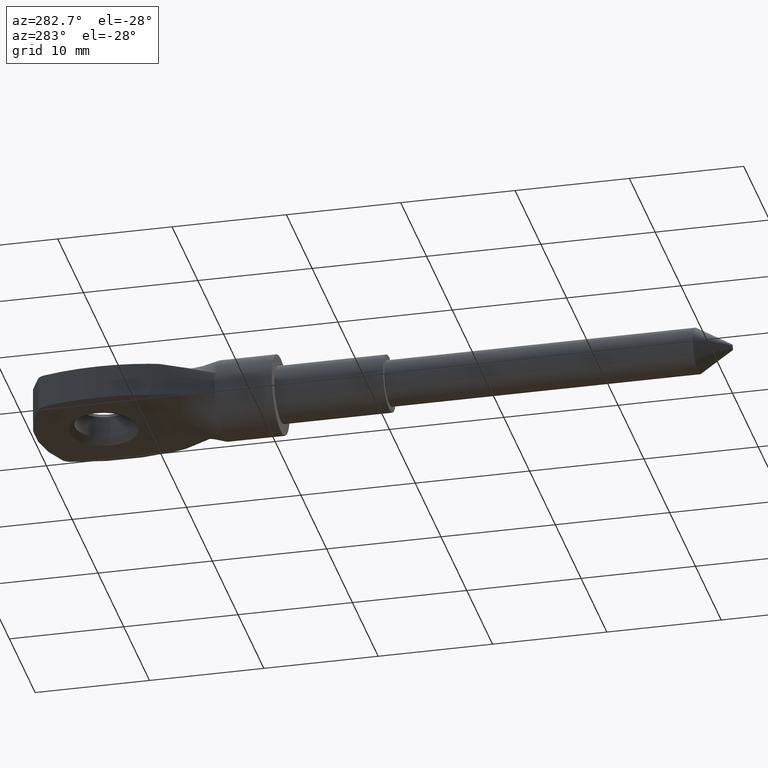
[diagram: clean part render]
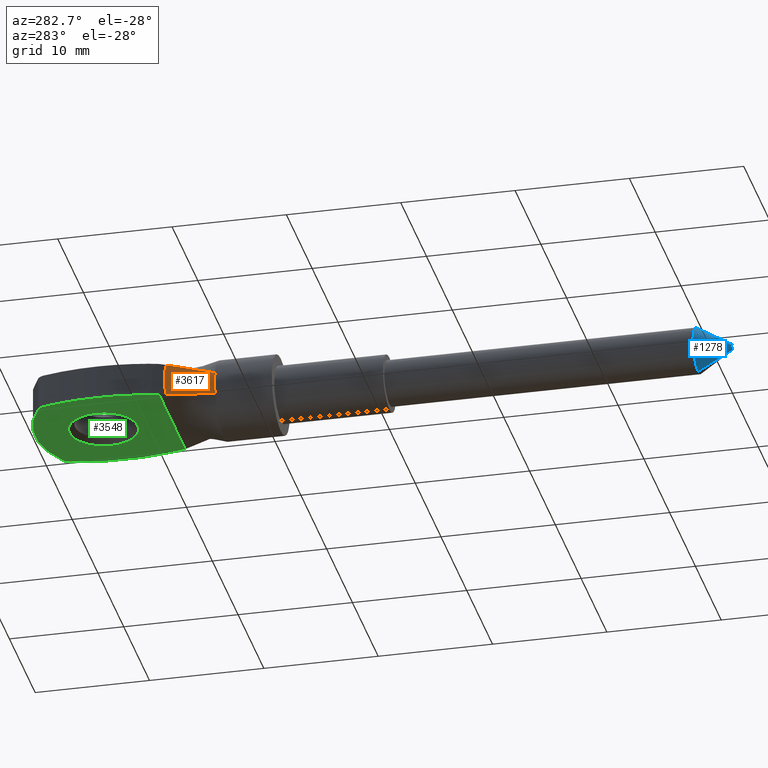
[diagram: same view with three faces highlighted in distinct colors, each labeled with its STEP entity id]
A machine part, auxiliary view with three faces highlighted in distinct colors.
Their STEP definitions:

[orange] entity #3617 — the highlighted face is a freeform B-spline surface patch.
#672 = CARTESIAN_POINT ( 'NONE',  ( -5.056021605490287600, 48.99999999999999300, 0.4999999999999990600 ) ) ;
#764 = LINE ( 'NONE', #6045, #4235 ) ;
#1009 = CARTESIAN_POINT ( 'NONE',  ( -4.918094482883141400, 48.60380004718535200, -0.4851963612217159400 ) ) ;
#1010 = B_SPLINE_SURFACE_WITH_KNOTS ( 'NONE', 3, 1, ( 
 ( #11789, #14049 ),
 ( #4984, #13961 ),
 ( #672, #6221 ),
 ( #12961, #2819 ),
 ( #10547, #4081 ),
 ( #10600, #7355 ) ),
 .UNSPECIFIED., .F., .F., .F.,
 ( 4, 2, 4 ),
 ( 2, 2 ),
 ( 0.0000000000000000000, 0.5000000000000000000, 1.000000000000000000 ),
 ( 0.0000000000000000000, 1.000000000000000000 ),
 .UNSPECIFIED. ) ;
#1729 = VERTEX_POINT ( 'NONE', #11827 ) ;
#2232 = CARTESIAN_POINT ( 'NONE',  ( -4.924405192743728700, 48.61936564056047400, 0.2432541116524944100 ) ) ;
#2598 = EDGE_CURVE ( 'NONE', #2620, #10090, #7171, .T. ) ;
#2620 = VERTEX_POINT ( 'NONE', #4704 ) ;
#2819 = CARTESIAN_POINT ( 'NONE',  ( -3.500000000000000900, 44.50000000000000700, -0.3388236185237016900 ) ) ;
#2893 = LINE ( 'NONE', #4837, #13983 ) ;
#2979 = EDGE_LOOP ( 'NONE', ( #4736, #3005, #7690, #12358 ) ) ;
#3005 = ORIENTED_EDGE ( 'NONE', *, *, #4285, .T. ) ;
#3085 = FACE_OUTER_BOUND ( 'NONE', #2979, .T. ) ;
#3252 = CARTESIAN_POINT ( 'NONE',  ( -4.891120015516262000, 48.54061751881855700, -0.9652113418151568900 ) ) ;
#3617 = ADVANCED_FACE ( 'NONE', ( #3085 ), #1010, .T. ) ;
#3756 = DIRECTION ( 'NONE',  ( 0.3515770152094533900, -0.9303301485610877600, 0.1043044440794158000 ) ) ;
#4081 = CARTESIAN_POINT ( 'NONE',  ( -3.449825324165552300, 44.50000000000000000, -0.6773582578305119600 ) ) ;
#4235 = VECTOR ( 'NONE', #3756, 1000.000000000000100 ) ;
#4285 = EDGE_CURVE ( 'NONE', #5069, #1729, #5057, .T. ) ;
#4459 = CARTESIAN_POINT ( 'NONE',  ( -4.838615001929873900, 48.42470665305572900, 1.435500689912696500 ) ) ;
#4704 = CARTESIAN_POINT ( 'NONE',  ( -3.355650334725514200, 44.50000000000000000, -0.9955416597942884400 ) ) ;
#4736 = ORIENTED_EDGE ( 'NONE', *, *, #5279, .F. ) ;
#4837 = CARTESIAN_POINT ( 'NONE',  ( -4.205733903382859600, 46.75000000000000000, 1.247740090395150300 ) ) ;
#4884 = DIRECTION ( 'NONE',  ( 0.0000000000000000000, 0.0000000000000000000, 1.000000000000000000 ) ) ;
#4984 = CARTESIAN_POINT ( 'NONE',  ( -5.056021605490287600, 48.99999999999999300, 0.9999999999999993300 ) ) ;
#5057 = B_SPLINE_CURVE_WITH_KNOTS ( 'NONE', 3,
 ( #5473, #6573, #11296, #7735, #2232, #11076, #1009, #3252, #8603, #10699 ),
 .UNSPECIFIED., .F., .F.,
 ( 4, 2, 2, 2, 4 ),
 ( -5.999999999490791000E-008, 0.0007290418259506889600, 0.001458143651901372800, 0.002187245477852056100, 0.002916347303802740000 ),
 .UNSPECIFIED. ) ;
#5069 = VERTEX_POINT ( 'NONE', #4459 ) ;
#5279 = EDGE_CURVE ( 'NONE', #5069, #10090, #2893, .T. ) ;
#5320 = CARTESIAN_POINT ( 'NONE',  ( -3.355623743714192500, 44.50000000000000000, 0.9955336945150837800 ) ) ;
#5473 = CARTESIAN_POINT ( 'NONE',  ( -4.838615001929873900, 48.42470665305572900, 1.435500689912696500 ) ) ;
#6045 = CARTESIAN_POINT ( 'NONE',  ( -4.205733903382858700, 46.75000000000000000, -1.247740090395151000 ) ) ;
#6221 = CARTESIAN_POINT ( 'NONE',  ( -3.500000000000000400, 44.50000000000000700, 0.3388236185237005800 ) ) ;
#6573 = CARTESIAN_POINT ( 'NONE',  ( -4.870403864582149500, 48.49283527146975100, 1.204387175550704300 ) ) ;
#7171 = CIRCLE ( 'NONE', #12813, 3.500000000000000000 ) ;
#7355 = CARTESIAN_POINT ( 'NONE',  ( -3.355446201275429400, 44.50000000000000000, -0.9954801807903019800 ) ) ;
#7690 = ORIENTED_EDGE ( 'NONE', *, *, #9359, .T. ) ;
#7735 = CARTESIAN_POINT ( 'NONE',  ( -4.918102579805668600, 48.60381905905141100, 0.4850462486628301400 ) ) ;
#8187 = CARTESIAN_POINT ( 'NONE',  ( 0.0000000000000000000, 44.50000000000000000, 0.0000000000000000000 ) ) ;
#8603 = CARTESIAN_POINT ( 'NONE',  ( -4.870403864589804700, 48.49283527150279100, -1.204387175561490600 ) ) ;
#9359 = EDGE_CURVE ( 'NONE', #1729, #2620, #764, .T. ) ;
#10090 = VERTEX_POINT ( 'NONE', #5320 ) ;
#10547 = CARTESIAN_POINT ( 'NONE',  ( -5.056021605490287600, 48.99999999999999300, -1.000000000000000700 ) ) ;
#10600 = CARTESIAN_POINT ( 'NONE',  ( -5.056021605490288500, 49.00000000000000000, -1.500000000000000000 ) ) ;
#10699 = CARTESIAN_POINT ( 'NONE',  ( -4.838615001929882800, 48.42470665305575700, -1.435500689912699900 ) ) ;
#11076 = CARTESIAN_POINT ( 'NONE',  ( -4.924401263639966300, 48.61935611570246600, -0.2434724581431163300 ) ) ;
#11296 = CARTESIAN_POINT ( 'NONE',  ( -4.891113732350794100, 48.54060275533446100, 0.9653291778706991600 ) ) ;
#11393 = DIRECTION ( 'NONE',  ( 0.0000000000000000000, 1.000000000000000000, 0.0000000000000000000 ) ) ;
#11789 = CARTESIAN_POINT ( 'NONE',  ( -5.056021605490288500, 49.00000000000000000, 1.500000000000000000 ) ) ;
#11827 = CARTESIAN_POINT ( 'NONE',  ( -4.838615001929882800, 48.42470665305575700, -1.435500689912699900 ) ) ;
#12358 = ORIENTED_EDGE ( 'NONE', *, *, #2598, .T. ) ;
#12813 = AXIS2_PLACEMENT_3D ( 'NONE', #8187, #11393, #4884 ) ;
#12961 = CARTESIAN_POINT ( 'NONE',  ( -5.056021605490287600, 48.99999999999999300, -0.5000000000000010000 ) ) ;
#13770 = DIRECTION ( 'NONE',  ( 0.3515770152094534500, -0.9303301485610877600, -0.1043044440794160700 ) ) ;
#13961 = CARTESIAN_POINT ( 'NONE',  ( -3.449825324165552300, 44.50000000000000700, 0.6773582578305107300 ) ) ;
#13983 = VECTOR ( 'NONE', #13770, 1000.000000000000000 ) ;
#14049 = CARTESIAN_POINT ( 'NONE',  ( -3.355446201275429800, 44.50000000000000000, 0.9954801807903006500 ) ) ;

[blue] entity #1278 — the highlighted conical surface has half-angle 30.256 deg.
#43 = CARTESIAN_POINT ( 'NONE',  ( 0.0000000000000000000, 3.000000000000000900, 0.0000000000000000000 ) ) ;
#677 = DIRECTION ( 'NONE',  ( -0.0000000000000000000, -1.000000000000000000, -0.0000000000000000000 ) ) ;
#1278 = ADVANCED_FACE ( 'NONE', ( #3903 ), #14290, .T. ) ;
#1749 = ORIENTED_EDGE ( 'NONE', *, *, #5065, .T. ) ;
#1860 = CARTESIAN_POINT ( 'NONE',  ( 0.0000000000000000000, 3.000000000000000900, -2.000000000000004400 ) ) ;
#2361 = DIRECTION ( 'NONE',  ( 6.170640385911674700E-017, 0.8637789008984329000, -0.5038710255240870200 ) ) ;
#2484 = AXIS2_PLACEMENT_3D ( 'NONE', #43, #12244, #3267 ) ;
#3068 = EDGE_CURVE ( 'NONE', #3838, #11428, #13489, .T. ) ;
#3196 = CARTESIAN_POINT ( 'NONE',  ( 0.0000000000000000000, -5.264398931363305000E-017, 0.2500000000000000000 ) ) ;
#3267 = DIRECTION ( 'NONE',  ( 0.0000000000000000000, 0.0000000000000000000, -1.000000000000000000 ) ) ;
#3286 = EDGE_LOOP ( 'NONE', ( #6366, #11329, #8715, #1749 ) ) ;
#3336 = CARTESIAN_POINT ( 'NONE',  ( 0.0000000000000000000, -5.264398931363305000E-017, 0.0000000000000000000 ) ) ;
#3376 = CIRCLE ( 'NONE', #8092, 0.2500000000000000000 ) ;
#3838 = VERTEX_POINT ( 'NONE', #3196 ) ;
#3903 = FACE_OUTER_BOUND ( 'NONE', #3286, .T. ) ;
#4045 = LINE ( 'NONE', #8872, #6096 ) ;
#5065 = EDGE_CURVE ( 'NONE', #11428, #12563, #9120, .T. ) ;
#5460 = DIRECTION ( 'NONE',  ( 0.0000000000000000000, 0.8637789008984329000, 0.5038710255240870200 ) ) ;
#6096 = VECTOR ( 'NONE', #2361, 1000.000000000000100 ) ;
#6366 = ORIENTED_EDGE ( 'NONE', *, *, #11264, .F. ) ;
#6561 = CARTESIAN_POINT ( 'NONE',  ( 0.0000000000000000000, -5.264398931363305000E-017, 0.2500000000000000000 ) ) ;
#6620 = AXIS2_PLACEMENT_3D ( 'NONE', #3336, #7775, #7728 ) ;
#7728 = DIRECTION ( 'NONE',  ( 0.0000000000000000000, 0.0000000000000000000, 1.000000000000000000 ) ) ;
#7775 = DIRECTION ( 'NONE',  ( 0.0000000000000000000, 1.000000000000000000, 0.0000000000000000000 ) ) ;
#8092 = AXIS2_PLACEMENT_3D ( 'NONE', #10553, #677, #8243 ) ;
#8243 = DIRECTION ( 'NONE',  ( 0.0000000000000000000, 0.0000000000000000000, -1.000000000000000000 ) ) ;
#8715 = ORIENTED_EDGE ( 'NONE', *, *, #3068, .T. ) ;
#8872 = CARTESIAN_POINT ( 'NONE',  ( 3.061616997868383000E-017, -5.264398931363305000E-017, -0.2500000000000000000 ) ) ;
#9120 = CIRCLE ( 'NONE', #2484, 2.000000000000004400 ) ;
#9172 = CARTESIAN_POINT ( 'NONE',  ( 1.377727649040774900E-016, -5.264398931363305000E-017, -0.2500000000000000000 ) ) ;
#9976 = EDGE_CURVE ( 'NONE', #3838, #11945, #3376, .T. ) ;
#10420 = CARTESIAN_POINT ( 'NONE',  ( 2.449293598294711800E-016, 3.000000000000000900, 2.000000000000004400 ) ) ;
#10553 = CARTESIAN_POINT ( 'NONE',  ( 0.0000000000000000000, -5.264398931363305000E-017, 0.0000000000000000000 ) ) ;
#11264 = EDGE_CURVE ( 'NONE', #11945, #12563, #4045, .T. ) ;
#11329 = ORIENTED_EDGE ( 'NONE', *, *, #9976, .F. ) ;
#11395 = VECTOR ( 'NONE', #5460, 1000.000000000000100 ) ;
#11428 = VERTEX_POINT ( 'NONE', #10420 ) ;
#11945 = VERTEX_POINT ( 'NONE', #9172 ) ;
#12244 = DIRECTION ( 'NONE',  ( -0.0000000000000000000, -1.000000000000000000, -0.0000000000000000000 ) ) ;
#12563 = VERTEX_POINT ( 'NONE', #1860 ) ;
#13489 = LINE ( 'NONE', #6561, #11395 ) ;
#14290 = CONICAL_SURFACE ( 'NONE', #6620, 0.2500000000000000000, 0.5280744484263606400 ) ;

[green] entity #3548 — the highlighted planar face has unit normal (0, 0, 1).
#145 = CARTESIAN_POINT ( 'NONE',  ( 5.264414197257599100, 49.84241978187635900, -1.500000000000000000 ) ) ;
#464 = VERTEX_POINT ( 'NONE', #1018 ) ;
#643 = FACE_OUTER_BOUND ( 'NONE', #11048, .T. ) ;
#687 = ORIENTED_EDGE ( 'NONE', *, *, #13177, .T. ) ;
#769 = CARTESIAN_POINT ( 'NONE',  ( 5.037407379332575100, 49.00000000000000000, -1.500000000000000000 ) ) ;
#980 = ORIENTED_EDGE ( 'NONE', *, *, #1079, .F. ) ;
#1018 = CARTESIAN_POINT ( 'NONE',  ( 5.156421867766698400, 59.05919208108967700, -1.500000000000000000 ) ) ;
#1079 = EDGE_CURVE ( 'NONE', #11578, #13180, #10484, .T. ) ;
#1168 = CARTESIAN_POINT ( 'NONE',  ( -14.25000000000000000, 54.22278946237950200, -1.500000000000000000 ) ) ;
#1238 = DIRECTION ( 'NONE',  ( 0.0000000000000000000, 0.0000000000000000000, 1.000000000000000000 ) ) ;
#1408 = CIRCLE ( 'NONE', #8376, 1.000000000000000000 ) ;
#1765 = CARTESIAN_POINT ( 'NONE',  ( -5.124994130331836900, 49.27759510181818600, -1.500000000000000000 ) ) ;
#1822 = EDGE_CURVE ( 'NONE', #7990, #6540, #4921, .T. ) ;
#1863 = ORIENTED_EDGE ( 'NONE', *, *, #12800, .T. ) ;
#1896 = DIRECTION ( 'NONE',  ( -1.000000000000000000, 0.0000000000000000000, 0.0000000000000000000 ) ) ;
#1973 = ORIENTED_EDGE ( 'NONE', *, *, #6155, .T. ) ;
#2132 = DIRECTION ( 'NONE',  ( 1.000000000000000000, 0.0000000000000000000, -0.0000000000000000000 ) ) ;
#2336 = DIRECTION ( 'NONE',  ( -0.0000000000000000000, -0.0000000000000000000, -1.000000000000000000 ) ) ;
#2904 = FACE_BOUND ( 'NONE', #9941, .T. ) ;
#3073 = PLANE ( 'NONE',  #14263 ) ;
#3164 = ORIENTED_EDGE ( 'NONE', *, *, #13765, .T. ) ;
#3313 = ORIENTED_EDGE ( 'NONE', *, *, #1822, .F. ) ;
#3511 = DIRECTION ( 'NONE',  ( 0.0000000000000000000, 0.0000000000000000000, 1.000000000000000000 ) ) ;
#3548 = ADVANCED_FACE ( 'NONE', ( #2904, #643 ), #3073, .F. ) ;
#3732 = CIRCLE ( 'NONE', #7781, 2.999999999999988900 ) ;
#3805 = VERTEX_POINT ( 'NONE', #13325 ) ;
#3928 = CARTESIAN_POINT ( 'NONE',  ( 0.0000000000000000000, 55.00000000000000000, -1.500000000000000000 ) ) ;
#3973 = DIRECTION ( 'NONE',  ( 1.000000000000000000, 0.0000000000000000000, 0.0000000000000000000 ) ) ;
#4271 = CARTESIAN_POINT ( 'NONE',  ( 14.25000000000000000, 54.22278946237950200, -1.500000000000000000 ) ) ;
#4401 = CARTESIAN_POINT ( 'NONE',  ( 14.25000000000000000, 49.00000000000000000, -1.500000000000000000 ) ) ;
#4424 = CARTESIAN_POINT ( 'NONE',  ( 2.999999999999988900, 55.00000000000000000, -1.500000000000000000 ) ) ;
#4566 = AXIS2_PLACEMENT_3D ( 'NONE', #1168, #10110, #5714 ) ;
#4655 = VERTEX_POINT ( 'NONE', #769 ) ;
#4717 = VERTEX_POINT ( 'NONE', #7442 ) ;
#4780 = VERTEX_POINT ( 'NONE', #9622 ) ;
#4890 = CARTESIAN_POINT ( 'NONE',  ( -5.264414197257602600, 49.84241978187638000, -1.500000000000000000 ) ) ;
#4921 = CIRCLE ( 'NONE', #5615, 8.999999999999998200 ) ;
#4941 = CARTESIAN_POINT ( 'NONE',  ( -4.709363371175657100, 59.66954344392344500, -1.500000000000000000 ) ) ;
#5264 = DIRECTION ( 'NONE',  ( 0.0000000000000000000, 0.0000000000000000000, 1.000000000000000000 ) ) ;
#5299 = AXIS2_PLACEMENT_3D ( 'NONE', #6766, #2336, #6817 ) ;
#5525 = CARTESIAN_POINT ( 'NONE',  ( 5.264414197257599100, 49.84241978187635900, -1.500000000000000000 ) ) ;
#5615 = AXIS2_PLACEMENT_3D ( 'NONE', #10913, #5264, #1896 ) ;
#5714 = DIRECTION ( 'NONE',  ( -1.000000000000000000, 0.0000000000000000000, 0.0000000000000000000 ) ) ;
#5734 = ORIENTED_EDGE ( 'NONE', *, *, #12259, .F. ) ;
#5938 = VERTEX_POINT ( 'NONE', #145 ) ;
#6072 = DIRECTION ( 'NONE',  ( 0.0000000000000000000, 0.0000000000000000000, 1.000000000000000000 ) ) ;
#6155 = EDGE_CURVE ( 'NONE', #5938, #4655, #9585, .T. ) ;
#6160 = VERTEX_POINT ( 'NONE', #4424 ) ;
#6166 = ORIENTED_EDGE ( 'NONE', *, *, #12635, .F. ) ;
#6402 = AXIS2_PLACEMENT_3D ( 'NONE', #9950, #1238, #12327 ) ;
#6508 = CARTESIAN_POINT ( 'NONE',  ( -4.186100774378362900, 58.81737195015416800, -1.500000000000000000 ) ) ;
#6540 = VERTEX_POINT ( 'NONE', #4941 ) ;
#6579 = CARTESIAN_POINT ( 'NONE',  ( 5.200661218778599900, 49.55840219452854700, -1.499999999999986500 ) ) ;
#6663 = DIRECTION ( 'NONE',  ( 1.000000000000000000, 0.0000000000000000000, 0.0000000000000000000 ) ) ;
#6766 = CARTESIAN_POINT ( 'NONE',  ( 4.186100774378362000, 58.81737195015416800, -1.500000000000000000 ) ) ;
#6817 = DIRECTION ( 'NONE',  ( 1.000000000000000000, -6.938893903907228400E-015, 0.0000000000000000000 ) ) ;
#7111 = ORIENTED_EDGE ( 'NONE', *, *, #13403, .T. ) ;
#7257 = EDGE_CURVE ( 'NONE', #6160, #3805, #3732, .T. ) ;
#7442 = CARTESIAN_POINT ( 'NONE',  ( -5.264414197257602600, 49.84241978187638000, -1.500000000000000000 ) ) ;
#7781 = AXIS2_PLACEMENT_3D ( 'NONE', #3928, #6072, #3973 ) ;
#7866 = DIRECTION ( 'NONE',  ( 0.0000000000000000000, 0.0000000000000000000, 1.000000000000000000 ) ) ;
#7990 = VERTEX_POINT ( 'NONE', #8646 ) ;
#7996 = VECTOR ( 'NONE', #2132, 1000.000000000000000 ) ;
#8048 = ORIENTED_EDGE ( 'NONE', *, *, #13832, .F. ) ;
#8109 = DIRECTION ( 'NONE',  ( 1.000000000000000000, 0.0000000000000000000, 0.0000000000000000000 ) ) ;
#8162 = CIRCLE ( 'NONE', #6402, 20.00000000000000400 ) ;
#8376 = AXIS2_PLACEMENT_3D ( 'NONE', #6508, #14289, #12024 ) ;
#8495 = CIRCLE ( 'NONE', #5299, 1.000000000000000000 ) ;
#8646 = CARTESIAN_POINT ( 'NONE',  ( 4.709363371175656200, 59.66954344392344500, -1.500000000000000000 ) ) ;
#9072 = DIRECTION ( 'NONE',  ( 1.000000000000000000, 0.0000000000000000000, -0.0000000000000000000 ) ) ;
#9356 = CARTESIAN_POINT ( 'NONE',  ( -5.037407379332568000, 49.00000000000000000, -1.500000000000000000 ) ) ;
#9585 = B_SPLINE_CURVE_WITH_KNOTS ( 'NONE', 3,
 ( #5525, #6579, #11097, #14361 ),
 .UNSPECIFIED., .F., .F.,
 ( 4, 4 ),
 ( 0.0000000000000000000, 0.0008724695893159019200 ),
 .UNSPECIFIED. ) ;
#9622 = CARTESIAN_POINT ( 'NONE',  ( -5.037407379332568000, 49.00000000000000000, -1.500000000000000000 ) ) ;
#9941 = EDGE_LOOP ( 'NONE', ( #1863, #11669 ) ) ;
#9950 = CARTESIAN_POINT ( 'NONE',  ( 14.25000000000000000, 54.22278946237950200, -1.500000000000000000 ) ) ;
#10110 = DIRECTION ( 'NONE',  ( 0.0000000000000000000, 0.0000000000000000000, 1.000000000000000000 ) ) ;
#10138 = AXIS2_PLACEMENT_3D ( 'NONE', #10166, #3511, #8109 ) ;
#10166 = CARTESIAN_POINT ( 'NONE',  ( 14.25000000000000000, 54.22278946237950200, -1.500000000000000000 ) ) ;
#10192 = B_SPLINE_CURVE_WITH_KNOTS ( 'NONE', 3,
 ( #9356, #1765, #12791, #4890 ),
 .UNSPECIFIED., .F., .F.,
 ( 4, 4 ),
 ( 0.0000000000000000000, 0.0008724695893159239300 ),
 .UNSPECIFIED. ) ;
#10484 = CIRCLE ( 'NONE', #10138, 20.00000000000000400 ) ;
#10913 = CARTESIAN_POINT ( 'NONE',  ( 0.0000000000000000000, 52.00000000000000700, -1.500000000000000000 ) ) ;
#11048 = EDGE_LOOP ( 'NONE', ( #3313, #7111, #5734, #1973, #6166, #687, #8048, #980, #3164 ) ) ;
#11097 = CARTESIAN_POINT ( 'NONE',  ( 5.124994130331839600, 49.27759510181817900, -1.500000000000000000 ) ) ;
#11482 = LINE ( 'NONE', #4401, #7996 ) ;
#11578 = VERTEX_POINT ( 'NONE', #12725 ) ;
#11669 = ORIENTED_EDGE ( 'NONE', *, *, #7257, .T. ) ;
#12024 = DIRECTION ( 'NONE',  ( 1.000000000000000000, -6.938893903907228400E-015, 0.0000000000000000000 ) ) ;
#12259 = EDGE_CURVE ( 'NONE', #5938, #464, #13067, .T. ) ;
#12304 = AXIS2_PLACEMENT_3D ( 'NONE', #13473, #13333, #6663 ) ;
#12327 = DIRECTION ( 'NONE',  ( 1.000000000000000000, 0.0000000000000000000, 0.0000000000000000000 ) ) ;
#12635 = EDGE_CURVE ( 'NONE', #4780, #4655, #11482, .T. ) ;
#12725 = CARTESIAN_POINT ( 'NONE',  ( -5.156421867766698400, 59.05919208108967700, -1.500000000000000000 ) ) ;
#12791 = CARTESIAN_POINT ( 'NONE',  ( -5.200661218778602500, 49.55840219452856100, -1.500000000000000000 ) ) ;
#12800 = EDGE_CURVE ( 'NONE', #3805, #6160, #13050, .T. ) ;
#13050 = CIRCLE ( 'NONE', #12304, 2.999999999999988900 ) ;
#13067 = CIRCLE ( 'NONE', #4566, 20.00000000000000400 ) ;
#13177 = EDGE_CURVE ( 'NONE', #4780, #4717, #10192, .T. ) ;
#13180 = VERTEX_POINT ( 'NONE', #13867 ) ;
#13325 = CARTESIAN_POINT ( 'NONE',  ( -2.999999999999988900, 55.00000000000000000, -1.500000000000000000 ) ) ;
#13333 = DIRECTION ( 'NONE',  ( 0.0000000000000000000, 0.0000000000000000000, 1.000000000000000000 ) ) ;
#13403 = EDGE_CURVE ( 'NONE', #7990, #464, #8495, .T. ) ;
#13473 = CARTESIAN_POINT ( 'NONE',  ( 0.0000000000000000000, 55.00000000000000000, -1.500000000000000000 ) ) ;
#13765 = EDGE_CURVE ( 'NONE', #11578, #6540, #1408, .T. ) ;
#13832 = EDGE_CURVE ( 'NONE', #13180, #4717, #8162, .T. ) ;
#13867 = CARTESIAN_POINT ( 'NONE',  ( -5.750000000000003600, 54.22278946237950200, -1.500000000000000000 ) ) ;
#14263 = AXIS2_PLACEMENT_3D ( 'NONE', #4271, #7866, #9072 ) ;
#14289 = DIRECTION ( 'NONE',  ( -0.0000000000000000000, -0.0000000000000000000, -1.000000000000000000 ) ) ;
#14361 = CARTESIAN_POINT ( 'NONE',  ( 5.037407379332575100, 49.00000000000000000, -1.500000000000000000 ) ) ;